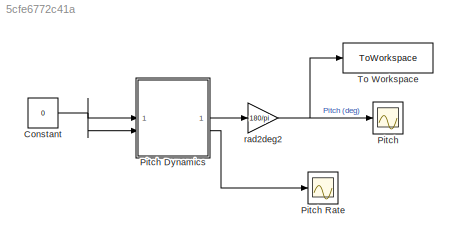
MODEL slx_5cfe6772c41a
KIND model
CONFIG AbsTol = auto
CONFIG EnableMultiTasking = on
CONFIG FixedStep = 0.01
CONFIG MaxStep = auto
CONFIG MinStep = auto
CONFIG RelTol = 1e-3
CONFIG SampleTimeConstraint = Unconstrained
CONFIG SolverName = ode1
CONFIG StartTime = 0.00
CONFIG StopTime = 10.00
BLOCK [Constant] Constant
  Value = 0
BLOCK [Scope] Pitch
  Floating = off
  NumInputPorts = 1
  ScopeSpecificationString = Simulink.scopes.TimeScopeBlockCfg('CurrentConfiguration', extmgr.ConfigurationSet(extmgr.Configuration('Core','General UI',true),extmgr.Configuration('Core','Source UI',true),extmgr.Configuration('Sources','WiredSimulink',true,'DataLogging',true,'DataLoggingVariableName','pitch','DataLoggingSaveFormat','StructureWithTime','DataLoggingDecimation','1','DataLoggingDecimateData',true),extmgr.Configura...<+1778ch>
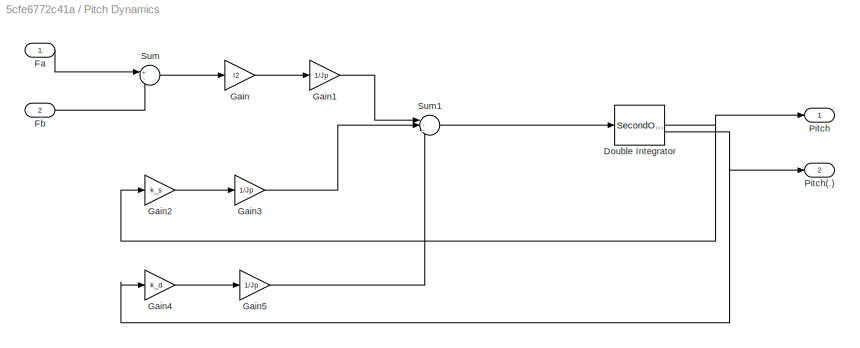
BLOCK [SubSystem] Pitch Dynamics
BLOCK [SecondOrderIntegrator] Pitch Dynamics/Double Integrator
  ICX = p0
  LimitX = on
  LowerLimitX = p_lim_l
  UpperLimitX = p_lim_u
BLOCK [Inport] Pitch Dynamics/Fa
BLOCK [Inport] Pitch Dynamics/Fb
  Port = 2
BLOCK [Gain] Pitch Dynamics/Gain
  Gain = l2
BLOCK [Gain] Pitch Dynamics/Gain1
  Gain = 1/Jp
BLOCK [Gain] Pitch Dynamics/Gain2
  Gain = k_s
BLOCK [Gain] Pitch Dynamics/Gain3
  Gain = 1/Jp
BLOCK [Gain] Pitch Dynamics/Gain4
  Gain = k_d
BLOCK [Gain] Pitch Dynamics/Gain5
  Gain = 1/Jp
BLOCK [Outport] Pitch Dynamics/Pitch
BLOCK [Outport] Pitch Dynamics/Pitch(.) 
  Port = 2
BLOCK [Sum] Pitch Dynamics/Sum
  Inputs = +-
BLOCK [Sum] Pitch Dynamics/Sum1
  Inputs = |---
BLOCK [Scope] Pitch Rate
  Floating = off
  NumInputPorts = 1
  ScopeSpecificationString = Simulink.scopes.TimeScopeBlockCfg('CurrentConfiguration', extmgr.ConfigurationSet(extmgr.Configuration('Core','General UI',true),extmgr.Configuration('Core','Source UI',true),extmgr.Configuration('Sources','WiredSimulink',true,'DataLogging',true,'DataLoggingVariableName','ScopeData1','DataLoggingSaveFormat','StructureWithTime','DataLoggingDecimation','1','DataLoggingDecimateData',true),extmgr.Conf...<+1788ch>
BLOCK [ToWorkspace] To Workspace
  FixptAsFi = on
  MaxDataPoints = inf
  SampleTime = -1
  SaveFormat = Timeseries
  VariableName = PitchSysData
BLOCK [Gain] rad2deg2
  Gain = 180/pi
  OutDataTypeStr = Inherit: Same as input
  ParamDataTypeStr = Inherit: Same as input
  SaturateOnIntegerOverflow = on
NET Constant:1 -> Pitch Dynamics:1, Pitch Dynamics:2
NET Pitch Dynamics/Double Integrator:1 -> Pitch Dynamics/Gain2:1, Pitch Dynamics/Pitch:1
NET Pitch Dynamics/Double Integrator:2 -> Pitch Dynamics/Gain4:1, Pitch Dynamics/Pitch(.) :1
LINE Pitch Dynamics/Fa:1 -> Pitch Dynamics/Sum:1
LINE Pitch Dynamics/Fb:1 -> Pitch Dynamics/Sum:2
LINE Pitch Dynamics/Gain1:1 -> Pitch Dynamics/Sum1:1
LINE Pitch Dynamics/Gain2:1 -> Pitch Dynamics/Gain3:1
LINE Pitch Dynamics/Gain3:1 -> Pitch Dynamics/Sum1:2
LINE Pitch Dynamics/Gain4:1 -> Pitch Dynamics/Gain5:1
LINE Pitch Dynamics/Gain5:1 -> Pitch Dynamics/Sum1:3
LINE Pitch Dynamics/Gain:1 -> Pitch Dynamics/Gain1:1
LINE Pitch Dynamics/Sum1:1 -> Pitch Dynamics/Double Integrator:1
LINE Pitch Dynamics/Sum:1 -> Pitch Dynamics/Gain:1
LINE Pitch Dynamics:1 -> rad2deg2:1
LINE Pitch Dynamics:2 -> Pitch Rate:1
NET rad2deg2:1 -> Pitch:1, To Workspace:1
note: NET lines group one-source signal fan-out (src -> all destinations, sorted); 1:1 wires keep LINE
